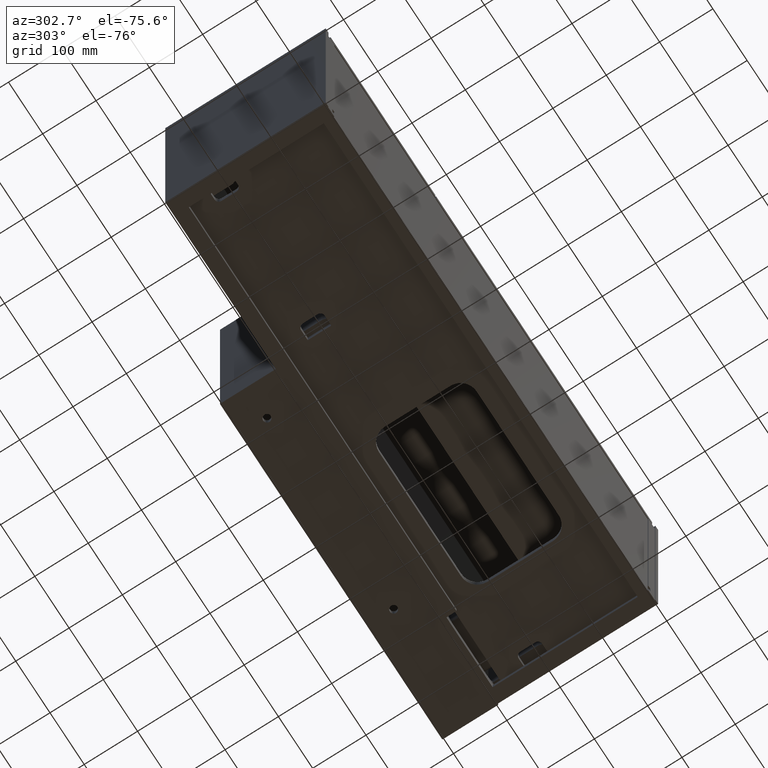
[diagram: clean part render]
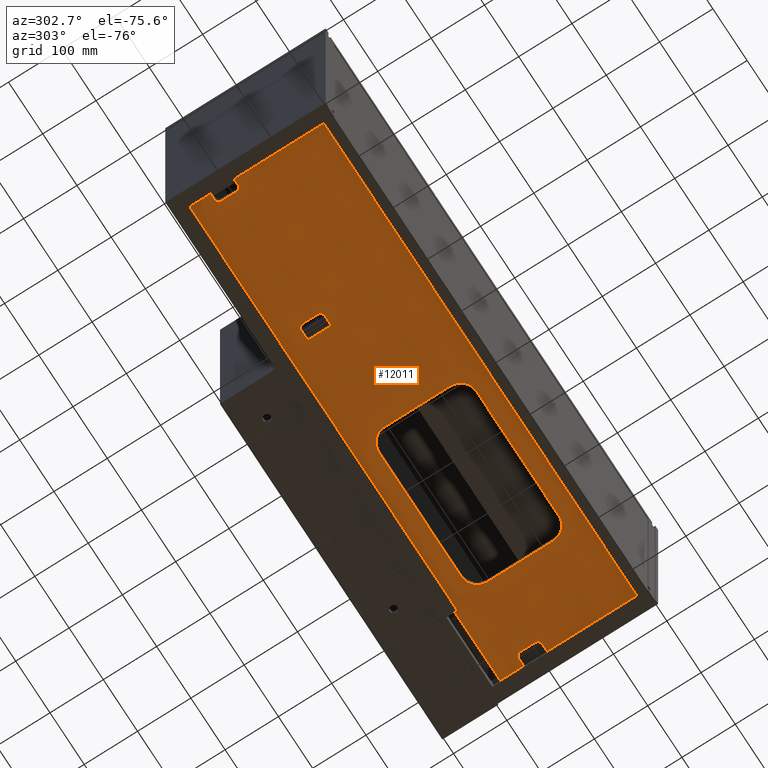
[diagram: same view with one face highlighted and labeled with its STEP entity id]
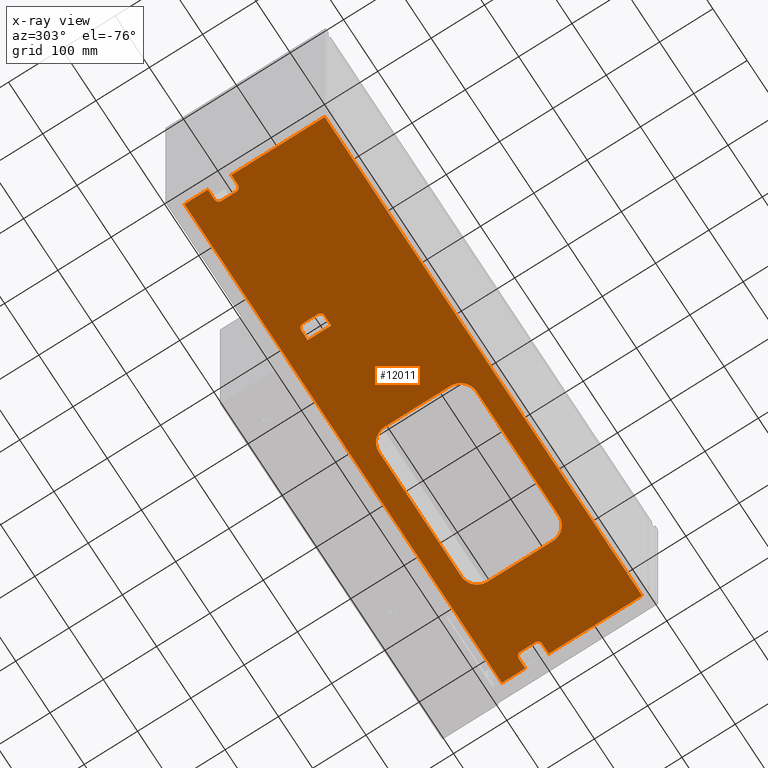
[diagram: x-ray of the same camera — body ghosted, the highlighted face saturated]
A machine part, auxiliary view. The second image highlights one B-rep face of the part: STEP entity #12011.
The next image is the same camera in x-ray: the body ghosted, the highlighted face saturated — about 0% of this face is hidden behind the body in this view.
In plain terms, the highlighted planar face has unit normal (0, -0, 1).
Its self-contained STEP definition (entity closure, byte-faithful):
#3 = EDGE_CURVE ( 'NONE', #6073, #5393, #3078, .T. ) ;
#4 = CARTESIAN_POINT ( 'NONE',  ( 950.9999999999998863, 278.0000000000002274, -456.5000000000004547 ) ) ;
#101 = CIRCLE ( 'NONE', #1683, 8.000000000000007105 ) ;
#105 = LINE ( 'NONE', #4980, #2840 ) ;
#126 = CARTESIAN_POINT ( 'NONE',  ( 296.4999999999998863, 198.0000000000002274, -456.5000000000003411 ) ) ;
#139 = VERTEX_POINT ( 'NONE', #15599 ) ;
#174 = VECTOR ( 'NONE', #13692, 1000.000000000000000 ) ;
#254 = EDGE_CURVE ( 'NONE', #7121, #2289, #105, .T. ) ;
#281 = VECTOR ( 'NONE', #4589, 1000.000000000000000 ) ;
#346 = CARTESIAN_POINT ( 'NONE',  ( 51.00000000000004263, 226.0000000000002558, -456.5000000000002842 ) ) ;
#349 = EDGE_CURVE ( 'NONE', #8119, #7121, #1068, .T. ) ;
#442 = CARTESIAN_POINT ( 'NONE',  ( 799.9999999999998863, 208.0000000000002274, -456.5000000000004547 ) ) ;
#520 = DIRECTION ( 'NONE',  ( -1.000000000000000000, 0.0000000000000000000, 0.0000000000000000000 ) ) ;
#599 = ORIENTED_EDGE ( 'NONE', *, *, #5128, .F. ) ;
#654 = CARTESIAN_POINT ( 'NONE',  ( 931.9999999999997726, 234.0000000000002558, -456.5000000000004547 ) ) ;
#678 = CARTESIAN_POINT ( 'NONE',  ( 499.9999999999999432, 208.0000000000002558, -456.5000000000003979 ) ) ;
#681 = EDGE_LOOP ( 'NONE', ( #7798, #13611, #1065, #10375, #8253, #13879 ) ) ;
#700 = VERTEX_POINT ( 'NONE', #2188 ) ;
#814 = CARTESIAN_POINT ( 'NONE',  ( 43.00000000000003553, 234.0000000000002558, -456.5000000000002842 ) ) ;
#929 = ORIENTED_EDGE ( 'NONE', *, *, #15618, .F. ) ;
#1065 = ORIENTED_EDGE ( 'NONE', *, *, #5846, .F. ) ;
#1068 = CIRCLE ( 'NONE', #14107, 29.99999999999997158 ) ;
#1111 = CARTESIAN_POINT ( 'NONE',  ( 950.9999999999998863, 1206.138069545199642, -456.5000000000004547 ) ) ;
#1118 = AXIS2_PLACEMENT_3D ( 'NONE', #7348, #12240, #1271 ) ;
#1127 = LINE ( 'NONE', #6005, #3351 ) ;
#1240 = CARTESIAN_POINT ( 'NONE',  ( 529.9999999999998863, 238.0000000000002274, -456.5000000000003979 ) ) ;
#1271 = DIRECTION ( 'NONE',  ( 1.000000000000000000, 0.0000000000000000000, 0.0000000000000000000 ) ) ;
#1307 = EDGE_CURVE ( 'NONE', #8895, #139, #7862, .T. ) ;
#1374 = LINE ( 'NONE', #6255, #7846 ) ;
#1404 = ORIENTED_EDGE ( 'NONE', *, *, #2881, .F. ) ;
#1540 = DIRECTION ( 'NONE',  ( -1.796477386124849124E-16, 0.0000000000000000000, -1.000000000000000000 ) ) ;
#1648 = CARTESIAN_POINT ( 'NONE',  ( 23.99999999999996447, 190.0000000000002842, -456.5000000000002842 ) ) ;
#1660 = VERTEX_POINT ( 'NONE', #3036 ) ;
#1671 = VERTEX_POINT ( 'NONE', #7923 ) ;
#1683 = AXIS2_PLACEMENT_3D ( 'NONE', #14844, #3837, #8736 ) ;
#1750 = DIRECTION ( 'NONE',  ( -1.796477386124849124E-16, 0.0000000000000000000, -1.000000000000000000 ) ) ;
#1774 = DIRECTION ( 'NONE',  ( -0.0000000000000000000, 1.000000000000000000, -0.0000000000000000000 ) ) ;
#1790 = CARTESIAN_POINT ( 'NONE',  ( 24.00000000000002132, 1206.138069545199642, -456.5000000000002842 ) ) ;
#1986 = DIRECTION ( 'NONE',  ( -1.000000000000000000, 0.0000000000000000000, 0.0000000000000000000 ) ) ;
#2093 = LINE ( 'NONE', #6981, #8612 ) ;
#2188 = CARTESIAN_POINT ( 'NONE',  ( 288.4999999999998863, 226.0000000000001990, -456.5000000000003411 ) ) ;
#2289 = VERTEX_POINT ( 'NONE', #3846 ) ;
#2341 = CIRCLE ( 'NONE', #9243, 8.000000000000007105 ) ;
#2377 = CARTESIAN_POINT ( 'NONE',  ( 529.9999999999998863, 55.00000000000002132, -456.5000000000003979 ) ) ;
#2393 = VECTOR ( 'NONE', #3895, 1000.000000000000000 ) ;
#2410 = ORIENTED_EDGE ( 'NONE', *, *, #349, .F. ) ;
#2434 = VERTEX_POINT ( 'NONE', #15738 ) ;
#2593 = EDGE_CURVE ( 'NONE', #2598, #11839, #3904, .T. ) ;
#2598 = VERTEX_POINT ( 'NONE', #2722 ) ;
#2722 = CARTESIAN_POINT ( 'NONE',  ( 315.4999999999998863, 234.0000000000001990, -456.5000000000003411 ) ) ;
#2815 = ORIENTED_EDGE ( 'NONE', *, *, #10321, .T. ) ;
#2840 = VECTOR ( 'NONE', #9870, 1000.000000000000000 ) ;
#2850 = VERTEX_POINT ( 'NONE', #4 ) ;
#2881 = EDGE_CURVE ( 'NONE', #2289, #15121, #13088, .T. ) ;
#2993 = FACE_BOUND ( 'NONE', #5459, .T. ) ;
#3036 = CARTESIAN_POINT ( 'NONE',  ( 43.00000000000003553, 190.0000000000002842, -456.5000000000002842 ) ) ;
#3078 = LINE ( 'NONE', #7970, #12797 ) ;
#3351 = VECTOR ( 'NONE', #10889, 1000.000000000000000 ) ;
#3396 = LINE ( 'NONE', #8285, #14158 ) ;
#3583 = VERTEX_POINT ( 'NONE', #9948 ) ;
#3686 = LINE ( 'NONE', #8576, #13699 ) ;
#3708 = DIRECTION ( 'NONE',  ( -1.000000000000000000, 0.0000000000000000000, 0.0000000000000000000 ) ) ;
#3754 = DIRECTION ( 'NONE',  ( -1.796477386124849124E-16, 0.0000000000000000000, -1.000000000000000000 ) ) ;
#3834 = EDGE_CURVE ( 'NONE', #14677, #700, #10684, .T. ) ;
#3837 = DIRECTION ( 'NONE',  ( -1.796477386124849124E-16, 0.0000000000000000000, -1.000000000000000000 ) ) ;
#3846 = CARTESIAN_POINT ( 'NONE',  ( 769.9999999999998863, 238.0000000000002274, -456.5000000000003979 ) ) ;
#3892 = CARTESIAN_POINT ( 'NONE',  ( 769.9999999999998863, 84.99999999999998579, -456.5000000000003979 ) ) ;
#3895 = DIRECTION ( 'NONE',  ( -1.000000000000000000, -0.0000000000000000000, 1.796477386124849124E-16 ) ) ;
#3898 = VERTEX_POINT ( 'NONE', #10906 ) ;
#3904 = LINE ( 'NONE', #8796, #174 ) ;
#4246 = VERTEX_POINT ( 'NONE', #6235 ) ;
#4339 = DIRECTION ( 'NONE',  ( 1.000000000000000000, -0.0000000000000000000, -0.0000000000000000000 ) ) ;
#4382 = DIRECTION ( 'NONE',  ( 1.000000000000000000, 0.0000000000000000000, 0.0000000000000000000 ) ) ;
#4429 = CARTESIAN_POINT ( 'NONE',  ( 24.00000000000002132, 1206.138069545199642, -456.5000000000002842 ) ) ;
#4511 = CIRCLE ( 'NONE', #12697, 30.00000000000002842 ) ;
#4589 = DIRECTION ( 'NONE',  ( -0.0000000000000000000, 1.000000000000000000, -0.0000000000000000000 ) ) ;
#4763 = CARTESIAN_POINT ( 'NONE',  ( 950.9999999999998863, 234.0000000000002558, -456.5000000000004547 ) ) ;
#4796 = DIRECTION ( 'NONE',  ( -1.000000000000000000, 0.0000000000000000000, 0.0000000000000000000 ) ) ;
#4810 = VERTEX_POINT ( 'NONE', #12610 ) ;
#4879 = CIRCLE ( 'NONE', #6948, 8.000000000000007105 ) ;
#4980 = CARTESIAN_POINT ( 'NONE',  ( 769.9999999999998863, 238.0000000000001990, -456.5000000000003979 ) ) ;
#5002 = DIRECTION ( 'NONE',  ( -1.796477386124849124E-16, 0.0000000000000000000, -1.000000000000000000 ) ) ;
#5128 = EDGE_CURVE ( 'NONE', #2850, #6073, #2093, .T. ) ;
#5175 = CARTESIAN_POINT ( 'NONE',  ( 923.9999999999997726, 198.0000000000002842, -456.5000000000004547 ) ) ;
#5226 = DIRECTION ( 'NONE',  ( -4.956352788505169184E-16, -1.000000000000000000, 0.0000000000000000000 ) ) ;
#5279 = EDGE_CURVE ( 'NONE', #4246, #4810, #4511, .T. ) ;
#5322 = DIRECTION ( 'NONE',  ( 0.0000000000000000000, -1.000000000000000000, 0.0000000000000000000 ) ) ;
#5393 = VERTEX_POINT ( 'NONE', #12628 ) ;
#5459 = EDGE_LOOP ( 'NONE', ( #9519, #7733, #8960, #13651, #10177, #1404, #11324, #2410 ) ) ;
#5561 = DIRECTION ( 'NONE',  ( 4.513101726118514040E-16, 1.000000000000000000, -0.0000000000000000000 ) ) ;
#5695 = VECTOR ( 'NONE', #1774, 1000.000000000000000 ) ;
#5811 = ORIENTED_EDGE ( 'NONE', *, *, #13075, .F. ) ;
#5846 = EDGE_CURVE ( 'NONE', #11305, #2598, #10446, .T. ) ;
#5910 = EDGE_CURVE ( 'NONE', #8384, #10975, #15431, .T. ) ;
#5970 = VERTEX_POINT ( 'NONE', #9475 ) ;
#5994 = DIRECTION ( 'NONE',  ( -0.0000000000000000000, -1.000000000000000000, -0.0000000000000000000 ) ) ;
#6005 = CARTESIAN_POINT ( 'NONE',  ( 950.9999999999998863, 1206.138069545199642, -456.5000000000004547 ) ) ;
#6073 = VERTEX_POINT ( 'NONE', #6174 ) ;
#6115 = EDGE_CURVE ( 'NONE', #11244, #7091, #1374, .T. ) ;
#6159 = AXIS2_PLACEMENT_3D ( 'NONE', #14757, #3754, #8649 ) ;
#6174 = CARTESIAN_POINT ( 'NONE',  ( 24.00000000000002132, 278.0000000000000000, -456.5000000000002842 ) ) ;
#6235 = CARTESIAN_POINT ( 'NONE',  ( 799.9999999999998863, 84.99999999999998579, -456.5000000000003979 ) ) ;
#6255 = CARTESIAN_POINT ( 'NONE',  ( 950.9999999999998863, 234.0000000000002558, -456.5000000000004547 ) ) ;
#6279 = VECTOR ( 'NONE', #4796, 1000.000000000000000 ) ;
#6412 = VECTOR ( 'NONE', #5322, 1000.000000000000000 ) ;
#6418 = DIRECTION ( 'NONE',  ( -1.000000000000000000, 0.0000000000000000000, 0.0000000000000000000 ) ) ;
#6437 = EDGE_CURVE ( 'NONE', #12618, #8758, #7204, .T. ) ;
#6526 = DIRECTION ( 'NONE',  ( -1.000000000000000000, 1.460819769243625553E-15, -0.0000000000000000000 ) ) ;
#6551 = CARTESIAN_POINT ( 'NONE',  ( 950.9999999999998863, 190.0000000000006253, -456.5000000000004547 ) ) ;
#6610 = CARTESIAN_POINT ( 'NONE',  ( 529.9999999999998863, 85.00000000000001421, -456.5000000000003979 ) ) ;
#6634 = DIRECTION ( 'NONE',  ( -1.000000000000000000, 0.0000000000000000000, 0.0000000000000000000 ) ) ;
#6674 = DIRECTION ( 'NONE',  ( 1.796477386124849370E-16, -0.0000000000000000000, 1.000000000000000000 ) ) ;
#6689 = CARTESIAN_POINT ( 'NONE',  ( 24.00000000000002132, 15.00000000000001421, -456.5000000000002842 ) ) ;
#6701 = ORIENTED_EDGE ( 'NONE', *, *, #15538, .T. ) ;
#6702 = EDGE_CURVE ( 'NONE', #8191, #3583, #15571, .T. ) ;
#6779 = ORIENTED_EDGE ( 'NONE', *, *, #3, .F. ) ;
#6948 = AXIS2_PLACEMENT_3D ( 'NONE', #10479, #15377, #4382 ) ;
#6981 = CARTESIAN_POINT ( 'NONE',  ( 24.00000000000002132, 278.0000000000000000, -456.5000000000002842 ) ) ;
#7091 = VERTEX_POINT ( 'NONE', #4763 ) ;
#7121 = VERTEX_POINT ( 'NONE', #1240 ) ;
#7204 = LINE ( 'NONE', #15798, #6279 ) ;
#7279 = EDGE_CURVE ( 'NONE', #2434, #1671, #11317, .T. ) ;
#7348 = CARTESIAN_POINT ( 'NONE',  ( 43.00000000000003553, 198.0000000000002842, -456.5000000000002842 ) ) ;
#7358 = ORIENTED_EDGE ( 'NONE', *, *, #6115, .F. ) ;
#7379 = VERTEX_POINT ( 'NONE', #814 ) ;
#7733 = ORIENTED_EDGE ( 'NONE', *, *, #6702, .F. ) ;
#7794 = AXIS2_PLACEMENT_3D ( 'NONE', #1790, #6674, #11572 ) ;
#7798 = ORIENTED_EDGE ( 'NONE', *, *, #11837, .F. ) ;
#7846 = VECTOR ( 'NONE', #11140, 1000.000000000000000 ) ;
#7862 = LINE ( 'NONE', #12741, #5695 ) ;
#7881 = FACE_OUTER_BOUND ( 'NONE', #14870, .T. ) ;
#7923 = CARTESIAN_POINT ( 'NONE',  ( 50.99999999999999289, 198.0000000000002842, -456.5000000000002842 ) ) ;
#7970 = CARTESIAN_POINT ( 'NONE',  ( 24.00000000000002132, 1206.138069545199642, -456.5000000000002842 ) ) ;
#8073 = CARTESIAN_POINT ( 'NONE',  ( 43.00000000000003553, 226.0000000000002558, -456.5000000000002842 ) ) ;
#8119 = VERTEX_POINT ( 'NONE', #13193 ) ;
#8191 = VERTEX_POINT ( 'NONE', #2377 ) ;
#8253 = ORIENTED_EDGE ( 'NONE', *, *, #3834, .F. ) ;
#8285 = CARTESIAN_POINT ( 'NONE',  ( 769.9999999999998863, 54.99999999999999289, -456.5000000000003979 ) ) ;
#8384 = VERTEX_POINT ( 'NONE', #13976 ) ;
#8530 = AXIS2_PLACEMENT_3D ( 'NONE', #12716, #1750, #6634 ) ;
#8576 = CARTESIAN_POINT ( 'NONE',  ( 24.00000000000002132, 234.0000000000002558, -456.5000000000002842 ) ) ;
#8604 = CARTESIAN_POINT ( 'NONE',  ( 315.4999999999998295, 190.0000000000001705, -456.5000000000003411 ) ) ;
#8612 = VECTOR ( 'NONE', #11869, 1000.000000000000000 ) ;
#8649 = DIRECTION ( 'NONE',  ( -1.000000000000000000, 0.0000000000000000000, 0.0000000000000000000 ) ) ;
#8736 = DIRECTION ( 'NONE',  ( 1.000000000000000000, 0.0000000000000000000, 0.0000000000000000000 ) ) ;
#8758 = VERTEX_POINT ( 'NONE', #9682 ) ;
#8786 = DIRECTION ( 'NONE',  ( -1.796477386124849124E-16, 0.0000000000000000000, -1.000000000000000000 ) ) ;
#8796 = CARTESIAN_POINT ( 'NONE',  ( 315.4999999999998863, 234.0000000000001990, -456.5000000000003411 ) ) ;
#8856 = ORIENTED_EDGE ( 'NONE', *, *, #13366, .F. ) ;
#8895 = VERTEX_POINT ( 'NONE', #5175 ) ;
#8960 = ORIENTED_EDGE ( 'NONE', *, *, #14669, .F. ) ;
#9243 = AXIS2_PLACEMENT_3D ( 'NONE', #8073, #12960, #1986 ) ;
#9268 = ORIENTED_EDGE ( 'NONE', *, *, #13883, .F. ) ;
#9321 = DIRECTION ( 'NONE',  ( -0.0000000000000000000, -1.000000000000000000, -0.0000000000000000000 ) ) ;
#9475 = CARTESIAN_POINT ( 'NONE',  ( 950.9999999999998863, 15.00000000000001421, -456.5000000000004547 ) ) ;
#9519 = ORIENTED_EDGE ( 'NONE', *, *, #12073, .F. ) ;
#9617 = VECTOR ( 'NONE', #5226, 1000.000000000000000 ) ;
#9682 = CARTESIAN_POINT ( 'NONE',  ( 931.9999999999997726, 190.0000000000002842, -456.5000000000004547 ) ) ;
#9808 = LINE ( 'NONE', #14707, #15231 ) ;
#9870 = DIRECTION ( 'NONE',  ( 1.000000000000000000, -1.156482317317871478E-16, -0.0000000000000000000 ) ) ;
#9891 = DIRECTION ( 'NONE',  ( -1.000000000000000000, 0.0000000000000000000, 0.0000000000000000000 ) ) ;
#9922 = EDGE_CURVE ( 'NONE', #700, #11305, #4879, .T. ) ;
#9932 = EDGE_CURVE ( 'NONE', #7379, #2434, #2341, .T. ) ;
#9948 = CARTESIAN_POINT ( 'NONE',  ( 499.9999999999998295, 84.99999999999997158, -456.5000000000003979 ) ) ;
#9990 = LINE ( 'NONE', #14900, #2393 ) ;
#10125 = EDGE_CURVE ( 'NONE', #15121, #4246, #11413, .T. ) ;
#10177 = ORIENTED_EDGE ( 'NONE', *, *, #10125, .F. ) ;
#10321 = EDGE_CURVE ( 'NONE', #2850, #7091, #1127, .T. ) ;
#10375 = ORIENTED_EDGE ( 'NONE', *, *, #9922, .F. ) ;
#10446 = LINE ( 'NONE', #15342, #14774 ) ;
#10455 = VECTOR ( 'NONE', #5994, 1000.000000000000000 ) ;
#10479 = CARTESIAN_POINT ( 'NONE',  ( 296.4999999999998863, 226.0000000000001990, -456.5000000000003411 ) ) ;
#10684 = LINE ( 'NONE', #15589, #281 ) ;
#10764 = CARTESIAN_POINT ( 'NONE',  ( 288.4999999999998863, 198.0000000000002274, -456.5000000000003411 ) ) ;
#10807 = EDGE_CURVE ( 'NONE', #3898, #14677, #12554, .T. ) ;
#10889 = DIRECTION ( 'NONE',  ( -0.0000000000000000000, -1.000000000000000000, -0.0000000000000000000 ) ) ;
#10906 = CARTESIAN_POINT ( 'NONE',  ( 296.4999999999998863, 190.0000000000002274, -456.5000000000003411 ) ) ;
#10936 = AXIS2_PLACEMENT_3D ( 'NONE', #6610, #11497, #520 ) ;
#10975 = VERTEX_POINT ( 'NONE', #6689 ) ;
#11140 = DIRECTION ( 'NONE',  ( 1.000000000000000000, -0.0000000000000000000, -0.0000000000000000000 ) ) ;
#11156 = VECTOR ( 'NONE', #9321, 1000.000000000000000 ) ;
#11244 = VERTEX_POINT ( 'NONE', #654 ) ;
#11305 = VERTEX_POINT ( 'NONE', #12992 ) ;
#11317 = LINE ( 'NONE', #346, #9617 ) ;
#11324 = ORIENTED_EDGE ( 'NONE', *, *, #254, .F. ) ;
#11413 = LINE ( 'NONE', #442, #6412 ) ;
#11497 = DIRECTION ( 'NONE',  ( -1.796477386124849124E-16, 0.0000000000000000000, -1.000000000000000000 ) ) ;
#11531 = ORIENTED_EDGE ( 'NONE', *, *, #5910, .F. ) ;
#11572 = DIRECTION ( 'NONE',  ( 1.000000000000000000, 0.0000000000000000000, -1.796477386124849370E-16 ) ) ;
#11655 = LINE ( 'NONE', #678, #15218 ) ;
#11837 = EDGE_CURVE ( 'NONE', #11839, #3898, #9808, .T. ) ;
#11839 = VERTEX_POINT ( 'NONE', #8604 ) ;
#11869 = DIRECTION ( 'NONE',  ( -1.000000000000000000, 0.0000000000000000000, 1.796477386124849370E-16 ) ) ;
#11983 = ORIENTED_EDGE ( 'NONE', *, *, #12755, .T. ) ;
#12011 = ADVANCED_FACE ( 'NONE', ( #13974, #2993, #7881 ), #12757, .F. ) ;
#12073 = EDGE_CURVE ( 'NONE', #3583, #8119, #11655, .T. ) ;
#12083 = LINE ( 'NONE', #1111, #10455 ) ;
#12240 = DIRECTION ( 'NONE',  ( -1.796477386124849124E-16, 0.0000000000000000000, -1.000000000000000000 ) ) ;
#12501 = CARTESIAN_POINT ( 'NONE',  ( 529.9999999999998863, 208.0000000000002558, -456.5000000000003979 ) ) ;
#12554 = CIRCLE ( 'NONE', #14635, 8.000000000000007105 ) ;
#12591 = VECTOR ( 'NONE', #6526, 1000.000000000000000 ) ;
#12609 = LINE ( 'NONE', #1648, #12591 ) ;
#12610 = CARTESIAN_POINT ( 'NONE',  ( 769.9999999999998863, 54.99999999999999289, -456.5000000000003979 ) ) ;
#12618 = VERTEX_POINT ( 'NONE', #6551 ) ;
#12628 = CARTESIAN_POINT ( 'NONE',  ( 24.00000000000002132, 234.0000000000004263, -456.5000000000002842 ) ) ;
#12697 = AXIS2_PLACEMENT_3D ( 'NONE', #3892, #8786, #13682 ) ;
#12716 = CARTESIAN_POINT ( 'NONE',  ( 931.9999999999997726, 198.0000000000002842, -456.5000000000004547 ) ) ;
#12741 = CARTESIAN_POINT ( 'NONE',  ( 923.9999999999997726, 226.0000000000002558, -456.5000000000004547 ) ) ;
#12755 = EDGE_CURVE ( 'NONE', #12618, #5970, #12083, .T. ) ;
#12757 = PLANE ( 'NONE',  #7794 ) ;
#12797 = VECTOR ( 'NONE', #12852, 1000.000000000000000 ) ;
#12852 = DIRECTION ( 'NONE',  ( -0.0000000000000000000, -1.000000000000000000, -0.0000000000000000000 ) ) ;
#12960 = DIRECTION ( 'NONE',  ( -1.796477386124849124E-16, 0.0000000000000000000, -1.000000000000000000 ) ) ;
#12992 = CARTESIAN_POINT ( 'NONE',  ( 296.4999999999998863, 234.0000000000001990, -456.5000000000003411 ) ) ;
#13075 = EDGE_CURVE ( 'NONE', #139, #11244, #101, .T. ) ;
#13088 = CIRCLE ( 'NONE', #6159, 30.00000000000002842 ) ;
#13172 = DIRECTION ( 'NONE',  ( -1.000000000000000000, 1.156482317317871478E-16, 0.0000000000000000000 ) ) ;
#13193 = CARTESIAN_POINT ( 'NONE',  ( 499.9999999999999432, 208.0000000000002558, -456.5000000000003979 ) ) ;
#13215 = ORIENTED_EDGE ( 'NONE', *, *, #6437, .F. ) ;
#13366 = EDGE_CURVE ( 'NONE', #5393, #7379, #3686, .T. ) ;
#13403 = CARTESIAN_POINT ( 'NONE',  ( 799.9999999999998863, 208.0000000000002274, -456.5000000000004547 ) ) ;
#13470 = DIRECTION ( 'NONE',  ( 1.000000000000000000, 0.0000000000000000000, 0.0000000000000000000 ) ) ;
#13534 = ORIENTED_EDGE ( 'NONE', *, *, #1307, .F. ) ;
#13611 = ORIENTED_EDGE ( 'NONE', *, *, #2593, .F. ) ;
#13651 = ORIENTED_EDGE ( 'NONE', *, *, #5279, .F. ) ;
#13682 = DIRECTION ( 'NONE',  ( 1.000000000000000000, 0.0000000000000000000, 0.0000000000000000000 ) ) ;
#13692 = DIRECTION ( 'NONE',  ( -1.261617073437678443E-15, -1.000000000000000000, 0.0000000000000000000 ) ) ;
#13699 = VECTOR ( 'NONE', #13470, 1000.000000000000000 ) ;
#13879 = ORIENTED_EDGE ( 'NONE', *, *, #10807, .F. ) ;
#13883 = EDGE_CURVE ( 'NONE', #1671, #1660, #14931, .T. ) ;
#13974 = FACE_BOUND ( 'NONE', #681, .T. ) ;
#13976 = CARTESIAN_POINT ( 'NONE',  ( 23.99999999999996447, 190.0000000000002842, -456.5000000000002842 ) ) ;
#14037 = EDGE_CURVE ( 'NONE', #1660, #8384, #12609, .T. ) ;
#14060 = ORIENTED_EDGE ( 'NONE', *, *, #7279, .F. ) ;
#14107 = AXIS2_PLACEMENT_3D ( 'NONE', #12501, #1540, #6418 ) ;
#14158 = VECTOR ( 'NONE', #13172, 1000.000000000000000 ) ;
#14485 = ORIENTED_EDGE ( 'NONE', *, *, #14037, .F. ) ;
#14635 = AXIS2_PLACEMENT_3D ( 'NONE', #126, #5002, #9891 ) ;
#14669 = EDGE_CURVE ( 'NONE', #4810, #8191, #3396, .T. ) ;
#14677 = VERTEX_POINT ( 'NONE', #10764 ) ;
#14707 = CARTESIAN_POINT ( 'NONE',  ( 315.4999999999998295, 190.0000000000002274, -456.5000000000003411 ) ) ;
#14757 = CARTESIAN_POINT ( 'NONE',  ( 769.9999999999998863, 208.0000000000002274, -456.5000000000003979 ) ) ;
#14774 = VECTOR ( 'NONE', #4339, 1000.000000000000000 ) ;
#14844 = CARTESIAN_POINT ( 'NONE',  ( 931.9999999999997726, 226.0000000000002558, -456.5000000000004547 ) ) ;
#14870 = EDGE_LOOP ( 'NONE', ( #2815, #7358, #5811, #13534, #929, #13215, #11983, #6701, #11531, #14485, #9268, #14060, #15881, #8856, #6779, #599 ) ) ;
#14900 = CARTESIAN_POINT ( 'NONE',  ( 24.00000000000002132, 15.00000000000001421, -456.5000000000002842 ) ) ;
#14931 = CIRCLE ( 'NONE', #1118, 8.000000000000014211 ) ;
#15121 = VERTEX_POINT ( 'NONE', #13403 ) ;
#15218 = VECTOR ( 'NONE', #5561, 1000.000000000000000 ) ;
#15231 = VECTOR ( 'NONE', #3708, 1000.000000000000000 ) ;
#15342 = CARTESIAN_POINT ( 'NONE',  ( 315.4999999999998863, 234.0000000000001990, -456.5000000000003411 ) ) ;
#15377 = DIRECTION ( 'NONE',  ( -1.796477386124849124E-16, 0.0000000000000000000, -1.000000000000000000 ) ) ;
#15431 = LINE ( 'NONE', #4429, #11156 ) ;
#15467 = CIRCLE ( 'NONE', #8530, 8.000000000000007105 ) ;
#15538 = EDGE_CURVE ( 'NONE', #5970, #10975, #9990, .T. ) ;
#15571 = CIRCLE ( 'NONE', #10936, 30.00000000000002842 ) ;
#15589 = CARTESIAN_POINT ( 'NONE',  ( 288.4999999999998863, 226.0000000000001990, -456.5000000000003411 ) ) ;
#15599 = CARTESIAN_POINT ( 'NONE',  ( 923.9999999999997726, 226.0000000000002558, -456.5000000000004547 ) ) ;
#15618 = EDGE_CURVE ( 'NONE', #8758, #8895, #15467, .T. ) ;
#15738 = CARTESIAN_POINT ( 'NONE',  ( 51.00000000000004263, 226.0000000000002558, -456.5000000000002842 ) ) ;
#15798 = CARTESIAN_POINT ( 'NONE',  ( 950.9999999999998863, 190.0000000000002842, -456.5000000000004547 ) ) ;
#15881 = ORIENTED_EDGE ( 'NONE', *, *, #9932, .F. ) ;